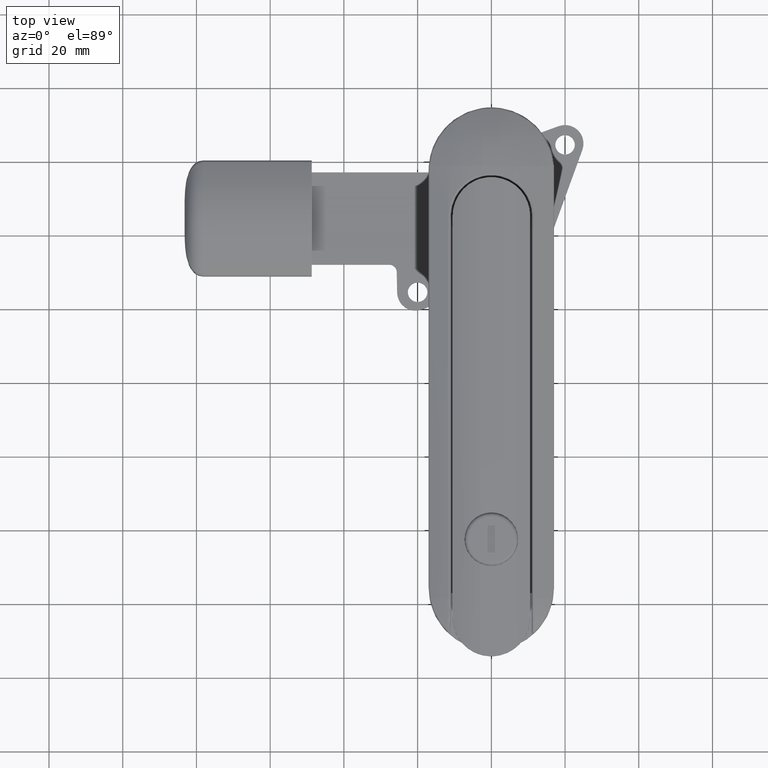
[diagram: clean part render]
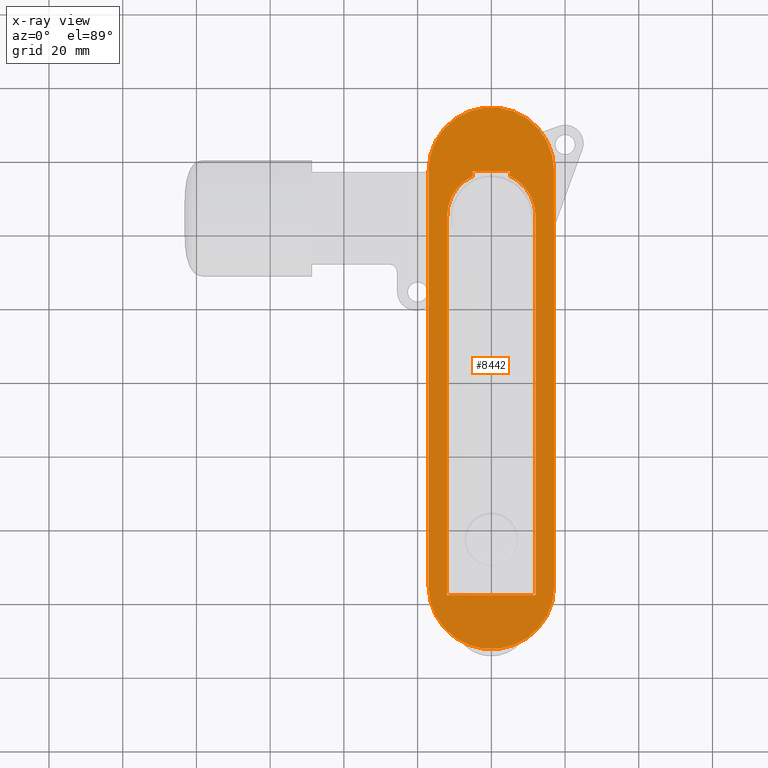
[diagram: x-ray — body ghosted, one internal face saturated and labeled with its STEP entity id]
A machine part, top view, then the same camera in x-ray: the body is ghosted and one INTERNAL B-rep face — a face not visible from any outside direction — is saturated and labeled: STEP entity #8442.
In plain terms, the highlighted planar face has unit normal (0, 0, 1).
Its self-contained STEP definition (entity closure, byte-faithful):
#676=FACE_BOUND('',#2125,.T.);
#1056=CIRCLE('',#9293,12.);
#1058=CIRCLE('',#9299,12.);
#1060=CIRCLE('',#9303,17.);
#1062=CIRCLE('',#9307,17.);
#1555=FACE_OUTER_BOUND('',#2124,.T.);
#2124=EDGE_LOOP('',(#7722,#7723,#7724,#7725));
#2125=EDGE_LOOP('',(#7726,#7727,#7728,#7729,#7730,#7731,#7732,#7733));
#2710=LINE('',#16876,#3320);
#2713=LINE('',#16882,#3323);
#2717=LINE('',#16894,#3327);
#2720=LINE('',#16900,#3330);
#2723=LINE('',#16906,#3333);
#2727=LINE('',#16916,#3337);
#2731=LINE('',#16930,#3341);
#2735=LINE('',#16940,#3345);
#3320=VECTOR('',#11581,10.);
#3323=VECTOR('',#11586,1.29128788536429);
#3327=VECTOR('',#11598,102.8);
#3330=VECTOR('',#11603,24.);
#3333=VECTOR('',#11608,102.8);
#3337=VECTOR('',#11620,1.29128788536428);
#3341=VECTOR('',#11632,113.);
#3345=VECTOR('',#11644,113.);
#4106=VERTEX_POINT('',#16873);
#4107=VERTEX_POINT('',#16875);
#4109=VERTEX_POINT('',#16881);
#4111=VERTEX_POINT('',#16887);
#4113=VERTEX_POINT('',#16893);
#4115=VERTEX_POINT('',#16899);
#4117=VERTEX_POINT('',#16905);
#4119=VERTEX_POINT('',#16911);
#4122=VERTEX_POINT('',#16921);
#4123=VERTEX_POINT('',#16923);
#4125=VERTEX_POINT('',#16929);
#4127=VERTEX_POINT('',#16935);
#5296=EDGE_CURVE('',#4107,#4106,#2710,.T.);
#5299=EDGE_CURVE('',#4109,#4107,#2713,.T.);
#5302=EDGE_CURVE('',#4111,#4109,#1056,.T.);
#5305=EDGE_CURVE('',#4113,#4111,#2717,.T.);
#5308=EDGE_CURVE('',#4115,#4113,#2720,.T.);
#5311=EDGE_CURVE('',#4117,#4115,#2723,.T.);
#5314=EDGE_CURVE('',#4119,#4117,#1058,.T.);
#5317=EDGE_CURVE('',#4106,#4119,#2727,.T.);
#5320=EDGE_CURVE('',#4123,#4122,#1060,.T.);
#5323=EDGE_CURVE('',#4125,#4123,#2731,.T.);
#5326=EDGE_CURVE('',#4127,#4125,#1062,.T.);
#5329=EDGE_CURVE('',#4122,#4127,#2735,.T.);
#7722=ORIENTED_EDGE('',*,*,#5329,.T.);
#7723=ORIENTED_EDGE('',*,*,#5326,.T.);
#7724=ORIENTED_EDGE('',*,*,#5323,.T.);
#7725=ORIENTED_EDGE('',*,*,#5320,.T.);
#7726=ORIENTED_EDGE('',*,*,#5308,.T.);
#7727=ORIENTED_EDGE('',*,*,#5305,.T.);
#7728=ORIENTED_EDGE('',*,*,#5302,.T.);
#7729=ORIENTED_EDGE('',*,*,#5299,.T.);
#7730=ORIENTED_EDGE('',*,*,#5296,.T.);
#7731=ORIENTED_EDGE('',*,*,#5317,.T.);
#7732=ORIENTED_EDGE('',*,*,#5314,.T.);
#7733=ORIENTED_EDGE('',*,*,#5311,.T.);
#7949=PLANE('',#9310);
#8442=ADVANCED_FACE('',(#1555,#676),#7949,.T.);
#9293=AXIS2_PLACEMENT_3D('',#16888,#11592,#11593);
#9299=AXIS2_PLACEMENT_3D('',#16912,#11614,#11615);
#9303=AXIS2_PLACEMENT_3D('',#16924,#11626,#11627);
#9307=AXIS2_PLACEMENT_3D('',#16936,#11638,#11639);
#9310=AXIS2_PLACEMENT_3D('',#16942,#11647,#11648);
#11581=DIRECTION('',(1.,0.,0.));
#11586=DIRECTION('',(8.5977963334795E-16,1.,0.));
#11592=DIRECTION('center_axis',(0.,0.,-1.));
#11593=DIRECTION('ref_axis',(-0.416666666666667,0.909059342886309,0.));
#11598=DIRECTION('',(-2.1599669739789E-16,1.,0.));
#11603=DIRECTION('',(-1.,0.,0.));
#11608=DIRECTION('',(3.45594715836625E-16,-1.,0.));
#11614=DIRECTION('center_axis',(0.,0.,-1.));
#11615=DIRECTION('ref_axis',(-0.416666666666667,0.909059342886309,0.));
#11620=DIRECTION('',(-1.28966945002193E-15,-1.,0.));
#11626=DIRECTION('center_axis',(0.,0.,1.));
#11627=DIRECTION('ref_axis',(-1.,-5.2245789394125E-16,0.));
#11632=DIRECTION('',(-2.75099510526587E-16,1.,0.));
#11638=DIRECTION('center_axis',(0.,0.,1.));
#11639=DIRECTION('ref_axis',(1.,0.,0.));
#11644=DIRECTION('',(1.57199720300907E-16,-1.,0.));
#11647=DIRECTION('center_axis',(0.,0.,1.));
#11648=DIRECTION('ref_axis',(1.,0.,0.));
#16873=CARTESIAN_POINT('',(4.99999999999998,56.2,1.));
#16875=CARTESIAN_POINT('',(-5.00000000000002,56.2,1.));
#16876=CARTESIAN_POINT('',(-2.50000000000002,56.2,1.));
#16881=CARTESIAN_POINT('',(-5.00000000000002,54.9087121146357,1.));
#16882=CARTESIAN_POINT('',(-5.00000000000004,27.4543560573179,1.));
#16887=CARTESIAN_POINT('',(-12.,44.,1.));
#16888=CARTESIAN_POINT('Origin',(-1.35244455746751E-14,44.,1.));
#16893=CARTESIAN_POINT('',(-12.,-58.8,1.));
#16894=CARTESIAN_POINT('',(-12.,-29.4,1.));
#16899=CARTESIAN_POINT('',(12.,-58.8,1.));
#16900=CARTESIAN_POINT('',(6.,-58.8,1.));
#16905=CARTESIAN_POINT('',(12.,44.,1.));
#16906=CARTESIAN_POINT('',(12.,22.,1.));
#16911=CARTESIAN_POINT('',(4.99999999999998,54.9087121146357,1.));
#16912=CARTESIAN_POINT('Origin',(-1.35244455746751E-14,44.,1.));
#16916=CARTESIAN_POINT('',(4.99999999999994,28.1,1.));
#16921=CARTESIAN_POINT('',(-17.,56.5,1.));
#16923=CARTESIAN_POINT('',(17.,56.5,1.));
#16924=CARTESIAN_POINT('Origin',(-2.07577632455476E-14,56.5,1.));
#16929=CARTESIAN_POINT('',(17.,-56.5,1.));
#16930=CARTESIAN_POINT('',(17.,56.5,1.));
#16935=CARTESIAN_POINT('',(-17.,-56.5,1.));
#16936=CARTESIAN_POINT('Origin',(0.,-56.5,1.));
#16940=CARTESIAN_POINT('',(-17.,-56.5,1.));
#16942=CARTESIAN_POINT('Origin',(-1.29655960806029E-14,0.,1.));